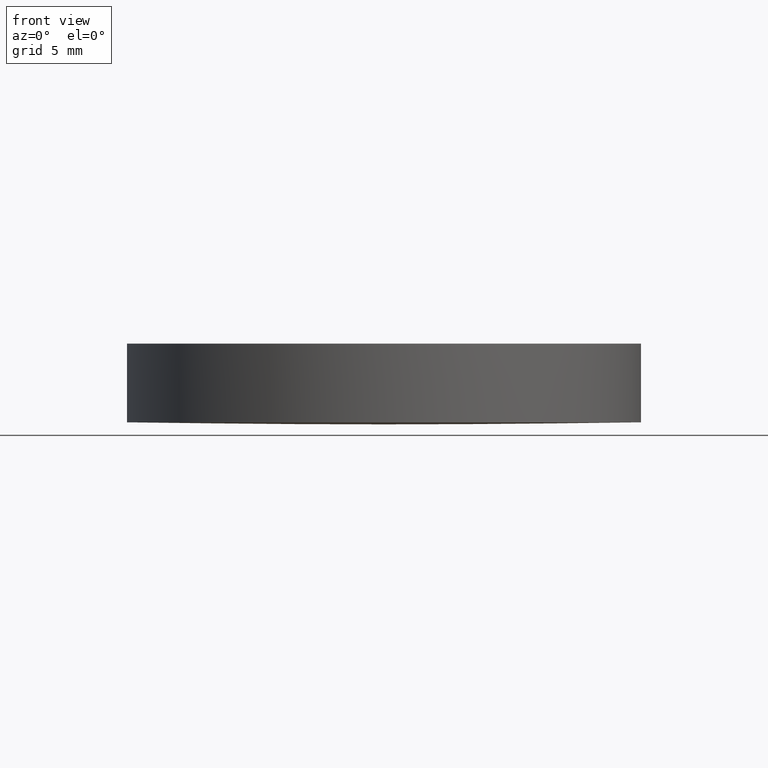
[diagram: clean part render]
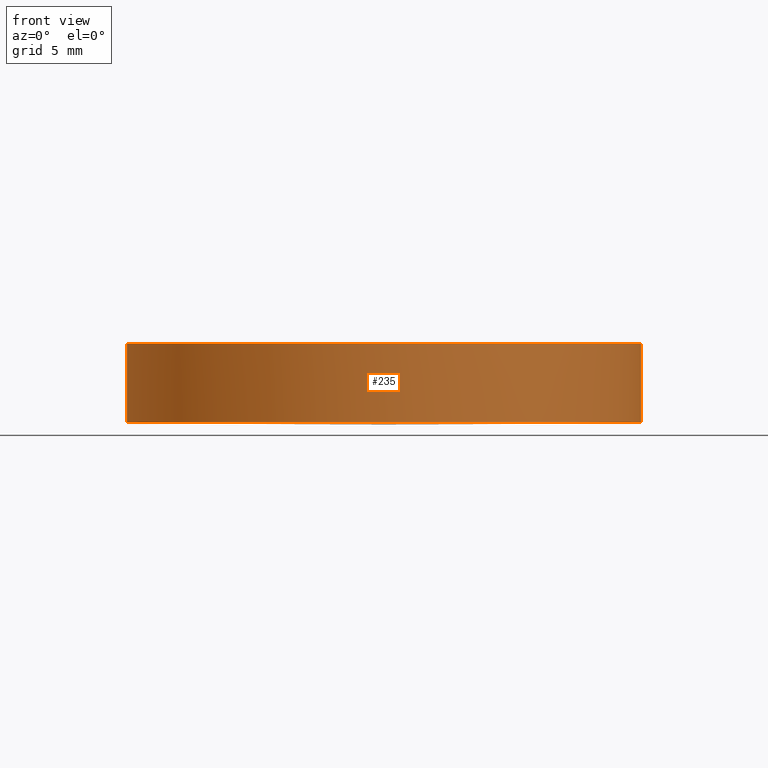
[diagram: same view with one face highlighted and labeled with its STEP entity id]
A machine part, front view. The second image highlights one B-rep face of the part: STEP entity #235.
In plain terms, the highlighted cylindrical surface (partial cylindrical patch) has radius 12.7 mm, axis along (0, 0, 1).
Its self-contained STEP definition (entity closure, byte-faithful):
#1 = CARTESIAN_POINT ( 'NONE',  ( -12.69999999999999900, 3.997792089092478900E-015, 0.1129412937514580100 ) ) ;
#6 = CIRCLE ( 'NONE', #223, 12.69999999999999900 ) ;
#12 = ORIENTED_EDGE ( 'NONE', *, *, #157, .F. ) ;
#14 = ORIENTED_EDGE ( 'NONE', *, *, #218, .T. ) ;
#25 = ORIENTED_EDGE ( 'NONE', *, *, #165, .F. ) ;
#27 = DIRECTION ( 'NONE',  ( -0.0000000000000000000, -0.0000000000000000000, -1.000000000000000000 ) ) ;
#35 = CYLINDRICAL_SURFACE ( 'NONE', #63, 12.69999999999999900 ) ;
#41 = VERTEX_POINT ( 'NONE', #47 ) ;
#43 = VERTEX_POINT ( 'NONE', #177 ) ;
#47 = CARTESIAN_POINT ( 'NONE',  ( -12.69999999999999900, 3.997792089092478900E-015, 4.000000000000000000 ) ) ;
#54 = DIRECTION ( 'NONE',  ( 1.000000000000000000, 0.0000000000000000000, 0.0000000000000000000 ) ) ;
#63 = AXIS2_PLACEMENT_3D ( 'NONE', #111, #145, #54 ) ;
#65 = VECTOR ( 'NONE', #179, 1000.000000000000000 ) ;
#67 = CARTESIAN_POINT ( 'NONE',  ( 12.69999999999999900, 2.442490654175340100E-015, 4.000000000000000000 ) ) ;
#71 = CARTESIAN_POINT ( 'NONE',  ( 4.996003610813200500E-016, 2.442490654175340100E-015, 0.1129412937514580100 ) ) ;
#72 = AXIS2_PLACEMENT_3D ( 'NONE', #71, #109, #73 ) ;
#73 = DIRECTION ( 'NONE',  ( 1.000000000000000000, 0.0000000000000000000, 0.0000000000000000000 ) ) ;
#75 = CARTESIAN_POINT ( 'NONE',  ( 12.69999999999999900, 2.442490654175340100E-015, 0.1129412937514580100 ) ) ;
#86 = LINE ( 'NONE', #75, #139 ) ;
#101 = AXIS2_PLACEMENT_3D ( 'NONE', #227, #163, #205 ) ;
#105 = VERTEX_POINT ( 'NONE', #106 ) ;
#106 = CARTESIAN_POINT ( 'NONE',  ( 12.69999999999999900, 2.442490654175340100E-015, 0.1129412937514580100 ) ) ;
#108 = ORIENTED_EDGE ( 'NONE', *, *, #189, .F. ) ;
#109 = DIRECTION ( 'NONE',  ( -0.0000000000000000000, -0.0000000000000000000, -1.000000000000000000 ) ) ;
#111 = CARTESIAN_POINT ( 'NONE',  ( 4.996003610813200500E-016, 2.442490654175340100E-015, 0.1129412937514580100 ) ) ;
#121 = VERTEX_POINT ( 'NONE', #67 ) ;
#122 = DIRECTION ( 'NONE',  ( 1.000000000000000000, 8.881784197001252300E-016, 0.0000000000000000000 ) ) ;
#125 = FACE_OUTER_BOUND ( 'NONE', #174, .T. ) ;
#139 = VECTOR ( 'NONE', #148, 1000.000000000000000 ) ;
#143 = CARTESIAN_POINT ( 'NONE',  ( 4.996003610813200500E-016, 2.442490654175340100E-015, 0.1129412937514580100 ) ) ;
#145 = DIRECTION ( 'NONE',  ( 0.0000000000000000000, 0.0000000000000000000, 1.000000000000000000 ) ) ;
#147 = ORIENTED_EDGE ( 'NONE', *, *, #182, .T. ) ;
#148 = DIRECTION ( 'NONE',  ( 0.0000000000000000000, 0.0000000000000000000, 1.000000000000000000 ) ) ;
#157 = EDGE_CURVE ( 'NONE', #234, #43, #6, .T. ) ;
#163 = DIRECTION ( 'NONE',  ( -0.0000000000000000000, -0.0000000000000000000, -1.000000000000000000 ) ) ;
#165 = EDGE_CURVE ( 'NONE', #105, #234, #170, .T. ) ;
#170 = CIRCLE ( 'NONE', #72, 12.69999999999999900 ) ;
#174 = EDGE_LOOP ( 'NONE', ( #108, #12, #25, #147, #14 ) ) ;
#176 = LINE ( 'NONE', #1, #65 ) ;
#177 = CARTESIAN_POINT ( 'NONE',  ( -12.69999999999999900, 3.997792089092478900E-015, 0.1129412937514580100 ) ) ;
#179 = DIRECTION ( 'NONE',  ( 0.0000000000000000000, 0.0000000000000000000, 1.000000000000000000 ) ) ;
#182 = EDGE_CURVE ( 'NONE', #105, #121, #86, .T. ) ;
#185 = CIRCLE ( 'NONE', #101, 12.69999999999999900 ) ;
#186 = CARTESIAN_POINT ( 'NONE',  ( -3.447252486504199500E-014, -12.70000000000168900, 0.1129412937514793200 ) ) ;
#189 = EDGE_CURVE ( 'NONE', #43, #41, #176, .T. ) ;
#205 = DIRECTION ( 'NONE',  ( 1.000000000000000000, 0.0000000000000000000, 0.0000000000000000000 ) ) ;
#218 = EDGE_CURVE ( 'NONE', #121, #41, #185, .T. ) ;
#223 = AXIS2_PLACEMENT_3D ( 'NONE', #143, #27, #122 ) ;
#227 = CARTESIAN_POINT ( 'NONE',  ( 4.996003610813200500E-016, 2.442490654175340100E-015, 4.000000000000000000 ) ) ;
#234 = VERTEX_POINT ( 'NONE', #186 ) ;
#235 = ADVANCED_FACE ( 'NONE', ( #125 ), #35, .T. ) ;